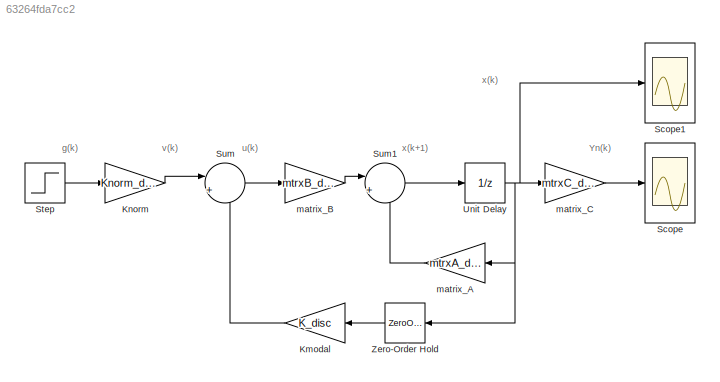
MODEL slx_63264fda7cc2
KIND model
CONFIG AbsTol = auto
CONFIG EnableMultiTasking = on
CONFIG FixedStep = T
CONFIG MaxStep = auto
CONFIG MinStep = auto
CONFIG RelTol = 1e-3
CONFIG SampleTimeConstraint = Unconstrained
CONFIG SolverName = FixedStepAuto
CONFIG StartTime = 0.0
CONFIG StopTime = StopTime
BLOCK [Gain] Kmodal
  Gain = K_disc
  Multiplication = Matrix(K*u) (u vector)
BLOCK [Gain] Knorm
  Gain = Knorm_disc
BLOCK [Scope] Scope
  Floating = off
  NumInputPorts = 1
  Ports = [1]
  ScopeSpecificationString = Simulink.scopes.TimeScopeBlockCfg('CurrentConfiguration', extmgr.ConfigurationSet(extmgr.Configuration('Core','General UI',true),extmgr.Configuration('Core','Source UI',true),extmgr.Configuration('Sources','WiredSimulink',true,'DataLogging',true,'DataLoggingVariableName','out_discrete','DataLoggingSaveFormat','Array'),extmgr.Configuration('Visuals','Time Domain',true,'SerializedDisplays',{struct('...<+1439ch>
BLOCK [Scope] Scope1
  Floating = off
  NumInputPorts = 1
  Ports = [1]
  ScopeSpecificationString = Simulink.scopes.TimeScopeBlockCfg('CurrentConfiguration', extmgr.ConfigurationSet(extmgr.Configuration('Core','General UI',true,'FigureColor',[1 1 1]),extmgr.Configuration('Core','Source UI',true),extmgr.Configuration('Sources','WiredSimulink',true),extmgr.Configuration('Visuals','Time Domain',true,'SerializedDisplays',{struct('MinYLimReal','-6.31977','MaxYLimReal','38.53489','YLabelReal','','MinY...<+1785ch>
BLOCK [Step] Step
  SampleTime = 0
  Time = 0
BLOCK [Sum] Sum
  Inputs = |+-
  Ports = [2, 1]
BLOCK [Sum] Sum1
  Inputs = |++
  Ports = [2, 1]
BLOCK [UnitDelay] Unit Delay
  HasFrameUpgradeWarning = on
  SampleTime = T
BLOCK [ZeroOrderHold] Zero-Order Hold
  SampleTime = T
BLOCK [Gain] matrix_A
  Gain = mtrxA_disc
  Multiplication = Matrix(K*u) (u vector)
BLOCK [Gain] matrix_B
  Gain = mtrxB_disc
  Multiplication = Matrix(K*u)
BLOCK [Gain] matrix_C
  Gain = mtrxC_disc(Out,:)
  Multiplication = Matrix(K*u) (u vector)
ANNOTATION (root): Yn(k)
ANNOTATION (root): g(k)
ANNOTATION (root): u(k)
ANNOTATION (root): v(k)
ANNOTATION (root): x(k)
ANNOTATION (root): x(k+1)
LINE Kmodal:1 -> Sum:2
LINE Knorm:1 -> Sum:1
LINE Step:1 -> Knorm:1
LINE Sum1:1 -> Unit Delay:1
LINE Sum:1 -> matrix_B:1
NET Unit Delay:1 -> Scope1:1, Zero-Order Hold:1, matrix_A:1, matrix_C:1
LINE Zero-Order Hold:1 -> Kmodal:1
LINE matrix_A:1 -> Sum1:2
LINE matrix_B:1 -> Sum1:1
LINE matrix_C:1 -> Scope:1
note: NET lines group one-source signal fan-out (src -> all destinations, sorted); 1:1 wires keep LINE
